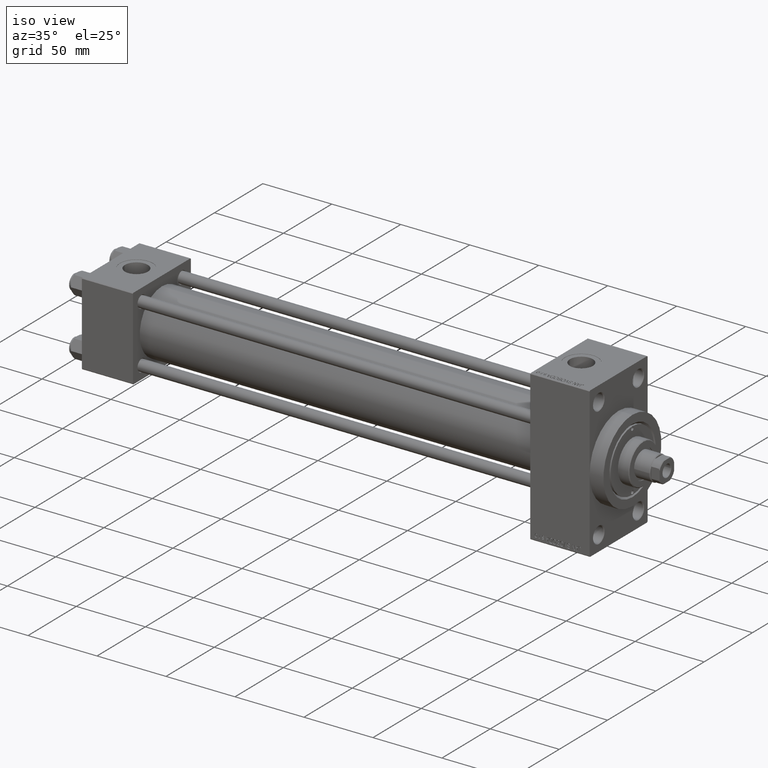
[diagram: clean part render]
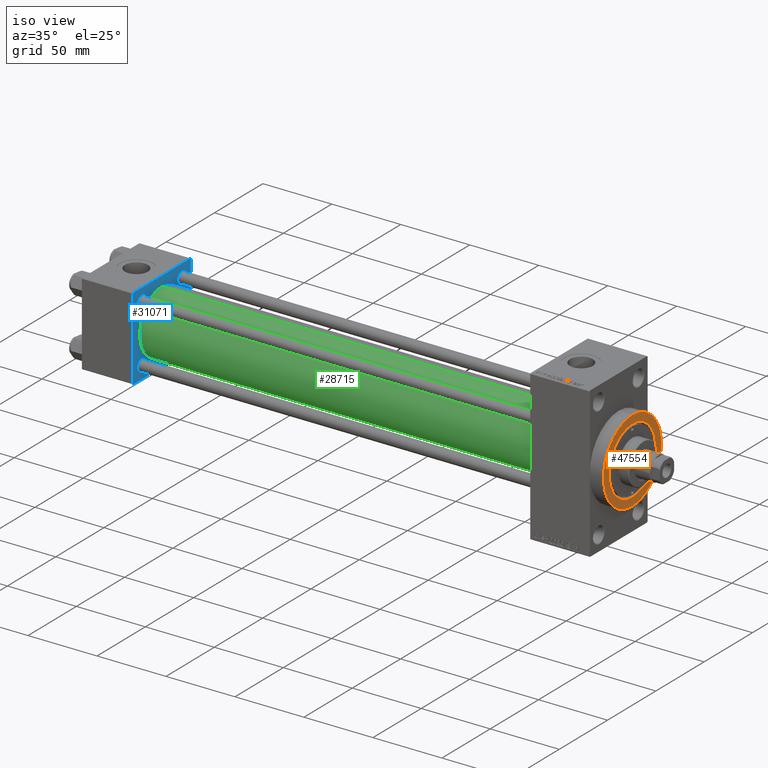
[diagram: same view with three faces highlighted in distinct colors, each labeled with its STEP entity id]
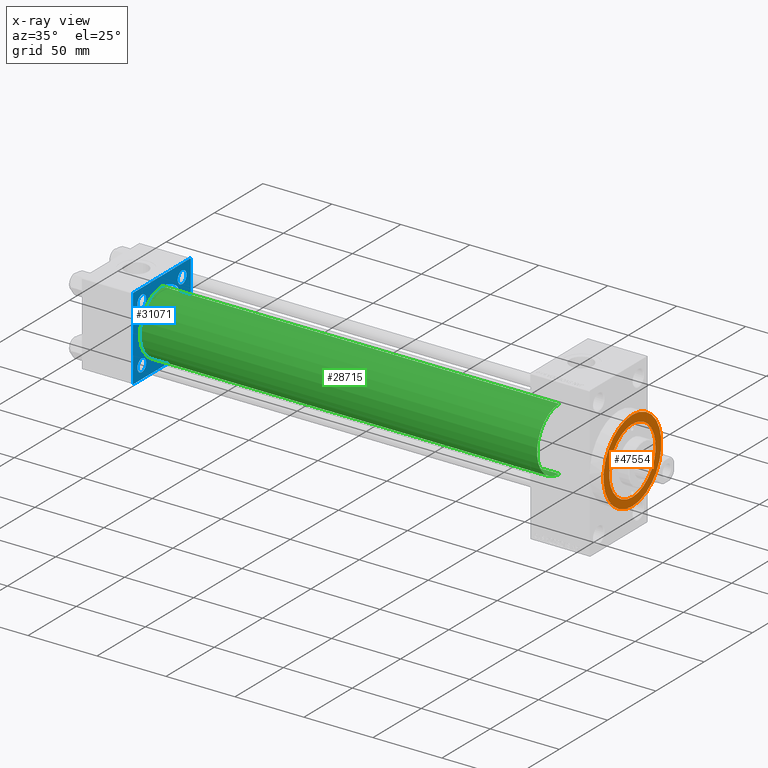
[diagram: x-ray of the same camera — body ghosted, the three highlighted faces saturated]
A machine part, iso view with three faces highlighted in distinct colors.
The next image is the same camera in x-ray (body ghosted, the three faces saturated) — at least one of them is partly hidden behind the body in this view.
Their STEP definitions:

[orange] entity #47554 — the highlighted planar face has unit normal (1, 0, 0).
#1066 = DIRECTION ( 'NONE',  ( 1.000000000000000000, 0.000000000000000000, 0.000000000000000000 ) ) ;
#2723 = FACE_BOUND ( 'NONE', #42950, .T. ) ;
#2953 = PLANE ( 'NONE',  #5801 ) ;
#3443 = AXIS2_PLACEMENT_3D ( 'NONE', #4136, #49145, #30255 ) ;
#4136 = CARTESIAN_POINT ( 'NONE',  ( 377.9999999999999432, 0.000000000000000000, 0.000000000000000000 ) ) ;
#5801 = AXIS2_PLACEMENT_3D ( 'NONE', #44732, #18397, #30054 ) ;
#6450 = FACE_OUTER_BOUND ( 'NONE', #48125, .T. ) ;
#7739 = CARTESIAN_POINT ( 'NONE',  ( 377.9999999999999432, 0.000000000000000000, 0.000000000000000000 ) ) ;
#9237 = CARTESIAN_POINT ( 'NONE',  ( 377.9999999999999432, 0.000000000000000000, -24.00000000000002487 ) ) ;
#11259 = AXIS2_PLACEMENT_3D ( 'NONE', #23203, #1066, #39328 ) ;
#11334 = CARTESIAN_POINT ( 'NONE',  ( 377.9999999999999432, 0.000000000000000000, 30.00000000000000000 ) ) ;
#13169 = CARTESIAN_POINT ( 'NONE',  ( 377.9999999999999432, 3.673940397442059178E-15, -30.00000000000000000 ) ) ;
#13412 = VERTEX_POINT ( 'NONE', #9237 ) ;
#15248 = VERTEX_POINT ( 'NONE', #11334 ) ;
#18397 = DIRECTION ( 'NONE',  ( 1.000000000000000000, 0.000000000000000000, 0.000000000000000000 ) ) ;
#20569 = DIRECTION ( 'NONE',  ( 0.000000000000000000, 0.000000000000000000, -1.000000000000000000 ) ) ;
#21139 = CARTESIAN_POINT ( 'NONE',  ( 377.9999999999999432, 0.000000000000000000, 0.000000000000000000 ) ) ;
#21424 = AXIS2_PLACEMENT_3D ( 'NONE', #7739, #22915, #38312 ) ;
#22915 = DIRECTION ( 'NONE',  ( -1.000000000000000000, -0.000000000000000000, -0.000000000000000000 ) ) ;
#23203 = CARTESIAN_POINT ( 'NONE',  ( 377.9999999999999432, 0.000000000000000000, 0.000000000000000000 ) ) ;
#24821 = CIRCLE ( 'NONE', #32754, 24.00000000000002487 ) ;
#28758 = ORIENTED_EDGE ( 'NONE', *, *, #46381, .T. ) ;
#29537 = CIRCLE ( 'NONE', #11259, 30.00000000000000000 ) ;
#29563 = ORIENTED_EDGE ( 'NONE', *, *, #44947, .T. ) ;
#30054 = DIRECTION ( 'NONE',  ( 0.000000000000000000, 0.000000000000000000, -1.000000000000000000 ) ) ;
#30255 = DIRECTION ( 'NONE',  ( 0.000000000000000000, 0.000000000000000000, -1.000000000000000000 ) ) ;
#32041 = VERTEX_POINT ( 'NONE', #13169 ) ;
#32754 = AXIS2_PLACEMENT_3D ( 'NONE', #21139, #38951, #20569 ) ;
#35527 = ORIENTED_EDGE ( 'NONE', *, *, #48735, .T. ) ;
#35816 = EDGE_CURVE ( 'NONE', #47039, #13412, #43629, .T. ) ;
#37176 = ORIENTED_EDGE ( 'NONE', *, *, #35816, .T. ) ;
#37622 = CARTESIAN_POINT ( 'NONE',  ( 377.9999999999999432, 2.939152317953650655E-15, 24.00000000000002487 ) ) ;
#38312 = DIRECTION ( 'NONE',  ( 0.000000000000000000, 0.000000000000000000, -1.000000000000000000 ) ) ;
#38951 = DIRECTION ( 'NONE',  ( -1.000000000000000000, -0.000000000000000000, -0.000000000000000000 ) ) ;
#39328 = DIRECTION ( 'NONE',  ( 0.000000000000000000, 0.000000000000000000, -1.000000000000000000 ) ) ;
#42950 = EDGE_LOOP ( 'NONE', ( #28758, #37176 ) ) ;
#43629 = CIRCLE ( 'NONE', #21424, 24.00000000000002487 ) ;
#44732 = CARTESIAN_POINT ( 'NONE',  ( 377.9999999999999432, 0.000000000000000000, 0.000000000000000000 ) ) ;
#44947 = EDGE_CURVE ( 'NONE', #15248, #32041, #29537, .T. ) ;
#45543 = CIRCLE ( 'NONE', #3443, 30.00000000000000000 ) ;
#46381 = EDGE_CURVE ( 'NONE', #13412, #47039, #24821, .T. ) ;
#47039 = VERTEX_POINT ( 'NONE', #37622 ) ;
#47554 = ADVANCED_FACE ( 'NONE', ( #2723, #6450 ), #2953, .T. ) ;
#48125 = EDGE_LOOP ( 'NONE', ( #29563, #35527 ) ) ;
#48735 = EDGE_CURVE ( 'NONE', #32041, #15248, #45543, .T. ) ;
#49145 = DIRECTION ( 'NONE',  ( 1.000000000000000000, 0.000000000000000000, 0.000000000000000000 ) ) ;

[blue] entity #31071 — the highlighted planar face has unit normal (-1, 0, 0).
#430 = CARTESIAN_POINT ( 'NONE',  ( 36.99999999999997868, -2.602085213965210642E-15, 0.000000000000000000 ) ) ;
#846 = EDGE_CURVE ( 'NONE', #30094, #47244, #33039, .T. ) ;
#925 = ORIENTED_EDGE ( 'NONE', *, *, #30161, .F. ) ;
#1070 = DIRECTION ( 'NONE',  ( 0.000000000000000000, 0.000000000000000000, 1.000000000000000000 ) ) ;
#1186 = VERTEX_POINT ( 'NONE', #28295 ) ;
#1426 = CIRCLE ( 'NONE', #29215, 4.499999999999948486 ) ;
#1785 = EDGE_LOOP ( 'NONE', ( #23202, #27959 ) ) ;
#1799 = CARTESIAN_POINT ( 'NONE',  ( 37.00000000000000000, 29.49999999999999289, 30.00000000000000000 ) ) ;
#1971 = EDGE_LOOP ( 'NONE', ( #42439, #24686 ) ) ;
#2867 = CARTESIAN_POINT ( 'NONE',  ( 37.00000000000000000, 29.99999999999999289, 29.50000000000000000 ) ) ;
#2921 = CARTESIAN_POINT ( 'NONE',  ( 37.00000000000000000, -20.84999999999999076, 25.34999999999995168 ) ) ;
#3318 = VERTEX_POINT ( 'NONE', #14061 ) ;
#3682 = EDGE_LOOP ( 'NONE', ( #43481, #32714, #37236, #22419, #4722, #39446, #33254, #44887 ) ) ;
#3752 = CARTESIAN_POINT ( 'NONE',  ( 37.00000000000000000, 20.84999999999999787, 20.85000000000000142 ) ) ;
#4105 = CARTESIAN_POINT ( 'NONE',  ( 37.00000000000000000, 20.84999999999999787, -25.34999999999994813 ) ) ;
#4257 = DIRECTION ( 'NONE',  ( -0.000000000000000000, 0.7071067811865574537, 0.7071067811865376918 ) ) ;
#4403 = CARTESIAN_POINT ( 'NONE',  ( 37.00000000000000000, 0.000000000000000000, 0.000000000000000000 ) ) ;
#4504 = LINE ( 'NONE', #30621, #38041 ) ;
#4617 = CARTESIAN_POINT ( 'NONE',  ( 37.00000000000000000, -30.00000000000000000, -29.50000000000001776 ) ) ;
#4722 = ORIENTED_EDGE ( 'NONE', *, *, #846, .T. ) ;
#4734 = VECTOR ( 'NONE', #4257, 999.9999999999998863 ) ;
#5586 = AXIS2_PLACEMENT_3D ( 'NONE', #35015, #46215, #9151 ) ;
#5749 = DIRECTION ( 'NONE',  ( 0.000000000000000000, 0.7071067811865474617, -0.7071067811865474617 ) ) ;
#5812 = EDGE_CURVE ( 'NONE', #17517, #39752, #26903, .T. ) ;
#5982 = CARTESIAN_POINT ( 'NONE',  ( 37.00000000000000000, 29.99999999999999289, 30.00000000000000000 ) ) ;
#6448 = LINE ( 'NONE', #44730, #15971 ) ;
#6992 = CARTESIAN_POINT ( 'NONE',  ( 37.00000000000000000, -29.49999999999998579, 29.99999999999999289 ) ) ;
#7036 = VERTEX_POINT ( 'NONE', #2867 ) ;
#7410 = DIRECTION ( 'NONE',  ( -1.000000000000000000, 0.000000000000000000, -0.000000000000000000 ) ) ;
#7763 = EDGE_CURVE ( 'NONE', #12820, #14261, #19086, .T. ) ;
#7891 = FACE_BOUND ( 'NONE', #1785, .T. ) ;
#8220 = VERTEX_POINT ( 'NONE', #8816 ) ;
#8816 = CARTESIAN_POINT ( 'NONE',  ( 37.00000000000000000, 20.84999999999999787, -16.35000000000005116 ) ) ;
#9151 = DIRECTION ( 'NONE',  ( 0.000000000000000000, 0.000000000000000000, 1.000000000000000000 ) ) ;
#9455 = AXIS2_PLACEMENT_3D ( 'NONE', #42316, #38563, #42558 ) ;
#9505 = LINE ( 'NONE', #1799, #39037 ) ;
#9749 = EDGE_CURVE ( 'NONE', #29176, #8220, #26240, .T. ) ;
#10089 = CARTESIAN_POINT ( 'NONE',  ( 37.00000000000000000, -20.84999999999999076, 16.35000000000005471 ) ) ;
#10119 = CARTESIAN_POINT ( 'NONE',  ( 37.00000000000000000, 29.99999999999999289, -29.50000000000000000 ) ) ;
#10232 = CIRCLE ( 'NONE', #45978, 4.499999999999948486 ) ;
#11144 = DIRECTION ( 'NONE',  ( 0.000000000000000000, 0.000000000000000000, -1.000000000000000000 ) ) ;
#11681 = AXIS2_PLACEMENT_3D ( 'NONE', #4403, #7410, #27034 ) ;
#11961 = DIRECTION ( 'NONE',  ( 0.000000000000000000, 0.000000000000000000, 1.000000000000000000 ) ) ;
#12110 = DIRECTION ( 'NONE',  ( 1.000000000000000000, -0.000000000000000000, 0.000000000000000000 ) ) ;
#12451 = CARTESIAN_POINT ( 'NONE',  ( 37.00000000000000000, 29.99999999999999289, -29.50000000000000000 ) ) ;
#12820 = VERTEX_POINT ( 'NONE', #2921 ) ;
#14061 = CARTESIAN_POINT ( 'NONE',  ( 37.00000000000000000, 20.84999999999999787, 16.35000000000005116 ) ) ;
#14261 = VERTEX_POINT ( 'NONE', #10089 ) ;
#14871 = CARTESIAN_POINT ( 'NONE',  ( 37.00000000000000000, -20.84999999999999076, 20.85000000000000497 ) ) ;
#14968 = CIRCLE ( 'NONE', #21307, 4.499999999999948486 ) ;
#15495 = VERTEX_POINT ( 'NONE', #35829 ) ;
#15971 = VECTOR ( 'NONE', #25832, 1000.000000000000000 ) ;
#16005 = VERTEX_POINT ( 'NONE', #46500 ) ;
#16115 = FACE_OUTER_BOUND ( 'NONE', #3682, .T. ) ;
#17517 = VERTEX_POINT ( 'NONE', #49071 ) ;
#17538 = CIRCLE ( 'NONE', #46901, 23.00000000000000000 ) ;
#18855 = FACE_BOUND ( 'NONE', #48522, .T. ) ;
#19086 = CIRCLE ( 'NONE', #38103, 4.499999999999948486 ) ;
#19696 = DIRECTION ( 'NONE',  ( -0.000000000000000000, -0.7071067811865474617, -0.7071067811865474617 ) ) ;
#20193 = CARTESIAN_POINT ( 'NONE',  ( 37.00000000000000000, -29.50000000000001066, -30.00000000000000711 ) ) ;
#20689 = VECTOR ( 'NONE', #34175, 1000.000000000000000 ) ;
#20797 = DIRECTION ( 'NONE',  ( 0.000000000000000000, 0.000000000000000000, 1.000000000000000000 ) ) ;
#21150 = DIRECTION ( 'NONE',  ( 0.000000000000000000, -1.000000000000000000, -1.156482317317871725E-16 ) ) ;
#21307 = AXIS2_PLACEMENT_3D ( 'NONE', #42115, #23217, #34640 ) ;
#22419 = ORIENTED_EDGE ( 'NONE', *, *, #44288, .T. ) ;
#22591 = CARTESIAN_POINT ( 'NONE',  ( 37.00000000000000000, -30.00000000000000000, 29.99999999999999289 ) ) ;
#22633 = EDGE_CURVE ( 'NONE', #39752, #17517, #1426, .T. ) ;
#23089 = EDGE_CURVE ( 'NONE', #40679, #1186, #39802, .T. ) ;
#23166 = LINE ( 'NONE', #12451, #4734 ) ;
#23202 = ORIENTED_EDGE ( 'NONE', *, *, #5812, .T. ) ;
#23217 = DIRECTION ( 'NONE',  ( -1.000000000000000000, 0.000000000000000000, -0.000000000000000000 ) ) ;
#23693 = CARTESIAN_POINT ( 'NONE',  ( 37.00000000000000000, 20.84999999999999787, 20.85000000000000142 ) ) ;
#24469 = VERTEX_POINT ( 'NONE', #38776 ) ;
#24686 = ORIENTED_EDGE ( 'NONE', *, *, #37043, .T. ) ;
#24930 = EDGE_CURVE ( 'NONE', #3318, #15495, #10232, .T. ) ;
#24996 = DIRECTION ( 'NONE',  ( -1.000000000000000000, 0.000000000000000000, -0.000000000000000000 ) ) ;
#25153 = ORIENTED_EDGE ( 'NONE', *, *, #38444, .F. ) ;
#25174 = AXIS2_PLACEMENT_3D ( 'NONE', #430, #12110, #37717 ) ;
#25327 = DIRECTION ( 'NONE',  ( 1.000000000000000000, -0.000000000000000000, 0.000000000000000000 ) ) ;
#25832 = DIRECTION ( 'NONE',  ( 0.000000000000000000, -1.000000000000000000, -1.156482317317871725E-16 ) ) ;
#26168 = EDGE_CURVE ( 'NONE', #15495, #3318, #38896, .T. ) ;
#26195 = CIRCLE ( 'NONE', #27795, 4.499999999999948486 ) ;
#26240 = CIRCLE ( 'NONE', #5586, 4.499999999999948486 ) ;
#26316 = DIRECTION ( 'NONE',  ( 0.000000000000000000, 0.000000000000000000, 1.000000000000000000 ) ) ;
#26382 = ORIENTED_EDGE ( 'NONE', *, *, #33394, .T. ) ;
#26663 = VERTEX_POINT ( 'NONE', #10119 ) ;
#26903 = CIRCLE ( 'NONE', #9455, 4.499999999999948486 ) ;
#27034 = DIRECTION ( 'NONE',  ( -0.000000000000000000, 0.000000000000000000, 1.000000000000000000 ) ) ;
#27795 = AXIS2_PLACEMENT_3D ( 'NONE', #48426, #33979, #49156 ) ;
#27959 = ORIENTED_EDGE ( 'NONE', *, *, #22633, .T. ) ;
#28074 = ORIENTED_EDGE ( 'NONE', *, *, #7763, .T. ) ;
#28081 = VERTEX_POINT ( 'NONE', #43855 ) ;
#28295 = CARTESIAN_POINT ( 'NONE',  ( 37.00000000000000000, -29.50000000000000000, -30.00000000000000711 ) ) ;
#28465 = CARTESIAN_POINT ( 'NONE',  ( 37.00000000000000000, -20.84999999999999076, -16.35000000000005471 ) ) ;
#28483 = CARTESIAN_POINT ( 'NONE',  ( 37.00000000000000000, -20.84999999999999076, -20.85000000000000497 ) ) ;
#29176 = VERTEX_POINT ( 'NONE', #4105 ) ;
#29215 = AXIS2_PLACEMENT_3D ( 'NONE', #28483, #24996, #20797 ) ;
#30017 = DIRECTION ( 'NONE',  ( -1.000000000000000000, 0.000000000000000000, -0.000000000000000000 ) ) ;
#30094 = VERTEX_POINT ( 'NONE', #39246 ) ;
#30161 = EDGE_CURVE ( 'NONE', #16005, #24469, #33070, .T. ) ;
#30520 = FACE_BOUND ( 'NONE', #1971, .T. ) ;
#30621 = CARTESIAN_POINT ( 'NONE',  ( 37.00000000000000000, -30.00000000000000000, 29.49999999999999289 ) ) ;
#31071 = ADVANCED_FACE ( 'NONE', ( #7891, #30520, #37722, #18855, #46184, #16115 ), #38461, .F. ) ;
#31158 = DIRECTION ( 'NONE',  ( -1.000000000000000000, 0.000000000000000000, -0.000000000000000000 ) ) ;
#32124 = DIRECTION ( 'NONE',  ( 0.000000000000000000, -0.7071067811865474617, 0.7071067811865474617 ) ) ;
#32714 = ORIENTED_EDGE ( 'NONE', *, *, #35821, .T. ) ;
#33039 = LINE ( 'NONE', #5982, #42751 ) ;
#33070 = CIRCLE ( 'NONE', #25174, 23.00000000000000000 ) ;
#33211 = VECTOR ( 'NONE', #5749, 1000.000000000000114 ) ;
#33254 = ORIENTED_EDGE ( 'NONE', *, *, #41769, .T. ) ;
#33394 = EDGE_CURVE ( 'NONE', #14261, #12820, #14968, .T. ) ;
#33979 = DIRECTION ( 'NONE',  ( -1.000000000000000000, 0.000000000000000000, -0.000000000000000000 ) ) ;
#34175 = DIRECTION ( 'NONE',  ( 0.000000000000000000, 0.000000000000000000, -1.000000000000000000 ) ) ;
#34522 = EDGE_CURVE ( 'NONE', #47244, #28081, #4504, .T. ) ;
#34640 = DIRECTION ( 'NONE',  ( 0.000000000000000000, 0.000000000000000000, 1.000000000000000000 ) ) ;
#35015 = CARTESIAN_POINT ( 'NONE',  ( 37.00000000000000000, 20.84999999999999787, -20.85000000000000142 ) ) ;
#35821 = EDGE_CURVE ( 'NONE', #46817, #26663, #23166, .T. ) ;
#35829 = CARTESIAN_POINT ( 'NONE',  ( 37.00000000000000000, 20.84999999999999787, 25.34999999999994813 ) ) ;
#36834 = DIRECTION ( 'NONE',  ( -1.000000000000000000, 0.000000000000000000, -0.000000000000000000 ) ) ;
#37043 = EDGE_CURVE ( 'NONE', #8220, #29176, #26195, .T. ) ;
#37236 = ORIENTED_EDGE ( 'NONE', *, *, #37450, .F. ) ;
#37242 = CARTESIAN_POINT ( 'NONE',  ( 36.99999999999997868, -2.602085213965210642E-15, 0.000000000000000000 ) ) ;
#37450 = EDGE_CURVE ( 'NONE', #7036, #26663, #46110, .T. ) ;
#37717 = DIRECTION ( 'NONE',  ( 0.000000000000000000, 0.000000000000000000, 1.000000000000000000 ) ) ;
#37722 = FACE_BOUND ( 'NONE', #42275, .T. ) ;
#38041 = VECTOR ( 'NONE', #19696, 1000.000000000000114 ) ;
#38103 = AXIS2_PLACEMENT_3D ( 'NONE', #14871, #30017, #45191 ) ;
#38444 = EDGE_CURVE ( 'NONE', #24469, #16005, #17538, .T. ) ;
#38461 = PLANE ( 'NONE',  #11681 ) ;
#38563 = DIRECTION ( 'NONE',  ( -1.000000000000000000, 0.000000000000000000, -0.000000000000000000 ) ) ;
#38776 = CARTESIAN_POINT ( 'NONE',  ( 36.99999999999997868, -2.602085213965210642E-15, 23.00000000000000000 ) ) ;
#38835 = EDGE_LOOP ( 'NONE', ( #25153, #925 ) ) ;
#38896 = CIRCLE ( 'NONE', #48422, 4.499999999999948486 ) ;
#39037 = VECTOR ( 'NONE', #32124, 1000.000000000000114 ) ;
#39240 = EDGE_CURVE ( 'NONE', #46817, #1186, #6448, .T. ) ;
#39246 = CARTESIAN_POINT ( 'NONE',  ( 37.00000000000000000, 29.49999999999999289, 30.00000000000000000 ) ) ;
#39446 = ORIENTED_EDGE ( 'NONE', *, *, #34522, .T. ) ;
#39752 = VERTEX_POINT ( 'NONE', #28465 ) ;
#39802 = LINE ( 'NONE', #20193, #33211 ) ;
#40679 = VERTEX_POINT ( 'NONE', #4617 ) ;
#41321 = VECTOR ( 'NONE', #11144, 1000.000000000000000 ) ;
#41564 = ORIENTED_EDGE ( 'NONE', *, *, #24930, .T. ) ;
#41722 = LINE ( 'NONE', #22591, #41321 ) ;
#41769 = EDGE_CURVE ( 'NONE', #28081, #40679, #41722, .T. ) ;
#42115 = CARTESIAN_POINT ( 'NONE',  ( 37.00000000000000000, -20.84999999999999076, 20.85000000000000497 ) ) ;
#42275 = EDGE_LOOP ( 'NONE', ( #26382, #28074 ) ) ;
#42316 = CARTESIAN_POINT ( 'NONE',  ( 37.00000000000000000, -20.84999999999999076, -20.85000000000000497 ) ) ;
#42439 = ORIENTED_EDGE ( 'NONE', *, *, #9749, .T. ) ;
#42558 = DIRECTION ( 'NONE',  ( 0.000000000000000000, 0.000000000000000000, 1.000000000000000000 ) ) ;
#42751 = VECTOR ( 'NONE', #21150, 1000.000000000000000 ) ;
#43481 = ORIENTED_EDGE ( 'NONE', *, *, #39240, .F. ) ;
#43855 = CARTESIAN_POINT ( 'NONE',  ( 37.00000000000000000, -30.00000000000000000, 29.49999999999999289 ) ) ;
#44201 = ORIENTED_EDGE ( 'NONE', *, *, #26168, .T. ) ;
#44288 = EDGE_CURVE ( 'NONE', #7036, #30094, #9505, .T. ) ;
#44730 = CARTESIAN_POINT ( 'NONE',  ( 37.00000000000000000, 29.99999999999999289, -30.00000000000000000 ) ) ;
#44887 = ORIENTED_EDGE ( 'NONE', *, *, #23089, .T. ) ;
#45191 = DIRECTION ( 'NONE',  ( 0.000000000000000000, 0.000000000000000000, 1.000000000000000000 ) ) ;
#45622 = CARTESIAN_POINT ( 'NONE',  ( 37.00000000000000000, 29.99999999999999289, 30.00000000000000000 ) ) ;
#45978 = AXIS2_PLACEMENT_3D ( 'NONE', #23693, #31158, #1070 ) ;
#46110 = LINE ( 'NONE', #45622, #20689 ) ;
#46184 = FACE_BOUND ( 'NONE', #38835, .T. ) ;
#46215 = DIRECTION ( 'NONE',  ( -1.000000000000000000, 0.000000000000000000, -0.000000000000000000 ) ) ;
#46500 = CARTESIAN_POINT ( 'NONE',  ( 36.99999999999997868, 2.146024240737016609E-16, -23.00000000000000000 ) ) ;
#46678 = CARTESIAN_POINT ( 'NONE',  ( 37.00000000000000000, 29.49999999999997868, -30.00000000000000000 ) ) ;
#46817 = VERTEX_POINT ( 'NONE', #46678 ) ;
#46901 = AXIS2_PLACEMENT_3D ( 'NONE', #37242, #25327, #26316 ) ;
#47244 = VERTEX_POINT ( 'NONE', #6992 ) ;
#48422 = AXIS2_PLACEMENT_3D ( 'NONE', #3752, #36834, #11961 ) ;
#48426 = CARTESIAN_POINT ( 'NONE',  ( 37.00000000000000000, 20.84999999999999787, -20.85000000000000142 ) ) ;
#48522 = EDGE_LOOP ( 'NONE', ( #41564, #44201 ) ) ;
#49071 = CARTESIAN_POINT ( 'NONE',  ( 37.00000000000000000, -20.84999999999999076, -25.34999999999995168 ) ) ;
#49156 = DIRECTION ( 'NONE',  ( 0.000000000000000000, 0.000000000000000000, 1.000000000000000000 ) ) ;

[green] entity #28715 — the highlighted cylindrical surface (partial cylindrical patch) has radius 23 mm, axis along (-1, -0, -0).
#1723 = ORIENTED_EDGE ( 'NONE', *, *, #38444, .T. ) ;
#3652 = CARTESIAN_POINT ( 'NONE',  ( 324.9999999999999432, 2.146024240737016609E-16, -23.00000000000000000 ) ) ;
#4748 = CARTESIAN_POINT ( 'NONE',  ( 324.9999999999999432, -2.602085213965210642E-15, 23.00000000000000000 ) ) ;
#7087 = CARTESIAN_POINT ( 'NONE',  ( 324.9999999999999432, -2.602085213965210642E-15, 0.000000000000000000 ) ) ;
#9271 = EDGE_CURVE ( 'NONE', #37001, #16005, #47053, .T. ) ;
#9919 = FACE_OUTER_BOUND ( 'NONE', #13175, .T. ) ;
#10025 = AXIS2_PLACEMENT_3D ( 'NONE', #12664, #43002, #43241 ) ;
#10331 = VERTEX_POINT ( 'NONE', #4748 ) ;
#12664 = CARTESIAN_POINT ( 'NONE',  ( 324.9999999999999432, -2.602085213965210642E-15, 0.000000000000000000 ) ) ;
#13175 = EDGE_LOOP ( 'NONE', ( #19197, #48578, #40730, #1723 ) ) ;
#16005 = VERTEX_POINT ( 'NONE', #46500 ) ;
#17538 = CIRCLE ( 'NONE', #46901, 23.00000000000000000 ) ;
#19197 = ORIENTED_EDGE ( 'NONE', *, *, #9271, .F. ) ;
#20847 = CARTESIAN_POINT ( 'NONE',  ( 324.9999999999999432, -2.602085213965210642E-15, 23.00000000000000000 ) ) ;
#21775 = DIRECTION ( 'NONE',  ( 1.000000000000000000, 0.000000000000000000, 0.000000000000000000 ) ) ;
#24176 = CARTESIAN_POINT ( 'NONE',  ( 324.9999999999999432, 2.146024240737016609E-16, -23.00000000000000000 ) ) ;
#24469 = VERTEX_POINT ( 'NONE', #38776 ) ;
#25327 = DIRECTION ( 'NONE',  ( 1.000000000000000000, -0.000000000000000000, 0.000000000000000000 ) ) ;
#26316 = DIRECTION ( 'NONE',  ( 0.000000000000000000, 0.000000000000000000, 1.000000000000000000 ) ) ;
#28589 = CIRCLE ( 'NONE', #42107, 23.00000000000000000 ) ;
#28650 = DIRECTION ( 'NONE',  ( -1.000000000000000000, -0.000000000000000000, -0.000000000000000000 ) ) ;
#28715 = ADVANCED_FACE ( 'NONE', ( #9919 ), #46725, .T. ) ;
#28782 = DIRECTION ( 'NONE',  ( -1.000000000000000000, -0.000000000000000000, -0.000000000000000000 ) ) ;
#32727 = EDGE_CURVE ( 'NONE', #10331, #24469, #44175, .T. ) ;
#36916 = DIRECTION ( 'NONE',  ( 0.000000000000000000, 0.000000000000000000, -1.000000000000000000 ) ) ;
#37001 = VERTEX_POINT ( 'NONE', #3652 ) ;
#37242 = CARTESIAN_POINT ( 'NONE',  ( 36.99999999999997868, -2.602085213965210642E-15, 0.000000000000000000 ) ) ;
#37386 = EDGE_CURVE ( 'NONE', #10331, #37001, #28589, .T. ) ;
#38444 = EDGE_CURVE ( 'NONE', #24469, #16005, #17538, .T. ) ;
#38776 = CARTESIAN_POINT ( 'NONE',  ( 36.99999999999997868, -2.602085213965210642E-15, 23.00000000000000000 ) ) ;
#40730 = ORIENTED_EDGE ( 'NONE', *, *, #32727, .T. ) ;
#42107 = AXIS2_PLACEMENT_3D ( 'NONE', #7087, #21775, #36916 ) ;
#43002 = DIRECTION ( 'NONE',  ( -1.000000000000000000, -0.000000000000000000, -0.000000000000000000 ) ) ;
#43241 = DIRECTION ( 'NONE',  ( 0.000000000000000000, 0.000000000000000000, 1.000000000000000000 ) ) ;
#44175 = LINE ( 'NONE', #20847, #45902 ) ;
#45902 = VECTOR ( 'NONE', #28782, 1000.000000000000000 ) ;
#46500 = CARTESIAN_POINT ( 'NONE',  ( 36.99999999999997868, 2.146024240737016609E-16, -23.00000000000000000 ) ) ;
#46725 = CYLINDRICAL_SURFACE ( 'NONE', #10025, 23.00000000000000000 ) ;
#46901 = AXIS2_PLACEMENT_3D ( 'NONE', #37242, #25327, #26316 ) ;
#47053 = LINE ( 'NONE', #24176, #48496 ) ;
#48496 = VECTOR ( 'NONE', #28650, 1000.000000000000000 ) ;
#48578 = ORIENTED_EDGE ( 'NONE', *, *, #37386, .F. ) ;